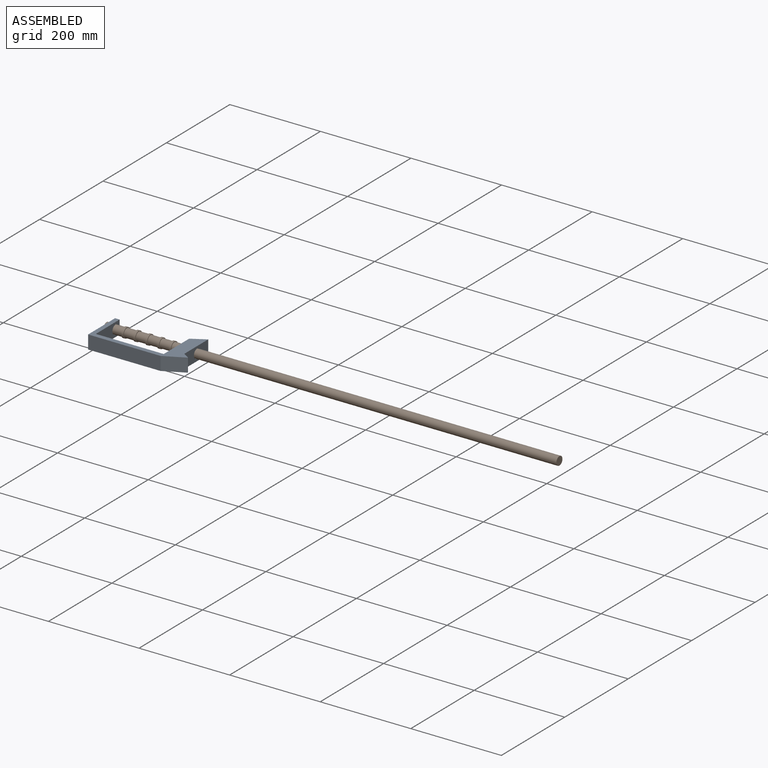
[diagram: assembled view]
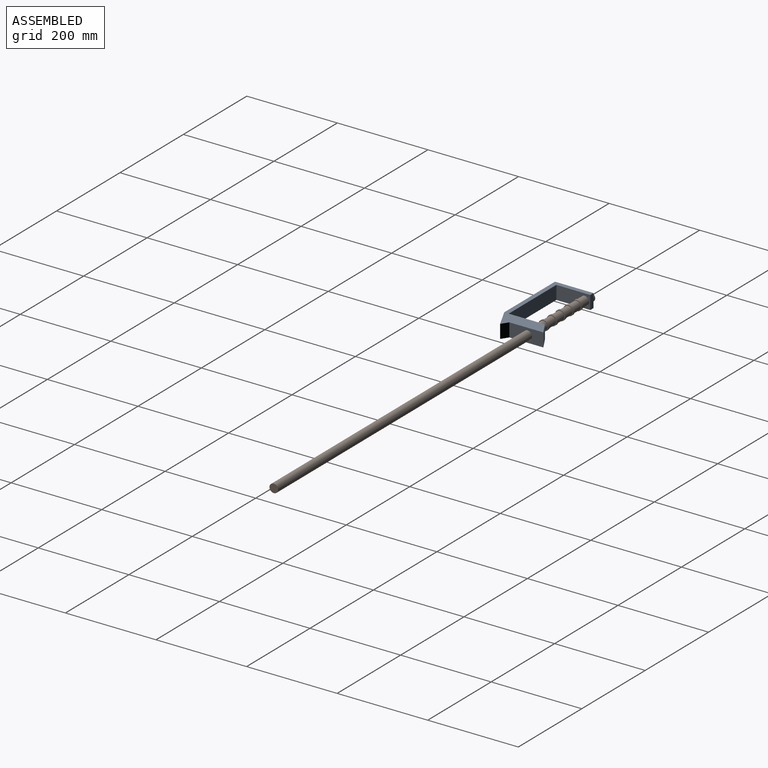
[diagram: assembled view, second angle]
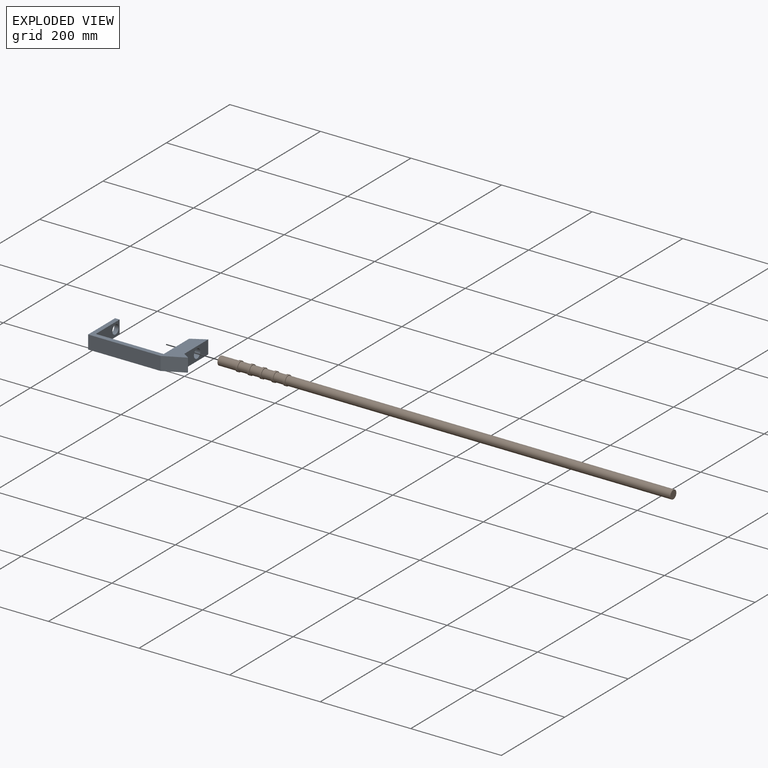
[diagram: exploded view]
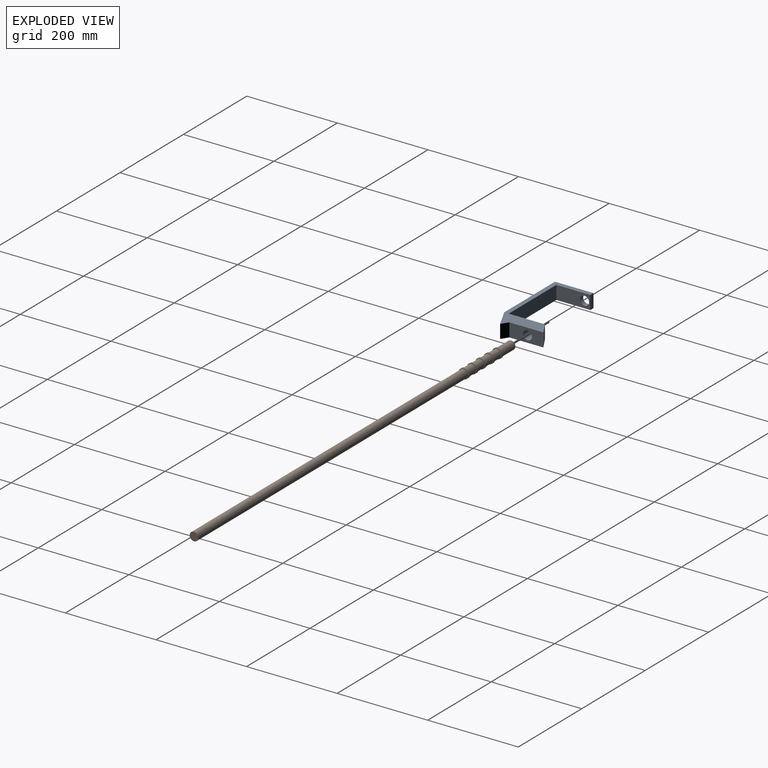
[diagram: exploded view, second angle]
FCSTD DOCUMENT  (FreeCAD 1.0R39319 (Git))
Label: chainsw
License: All rights reserved
LicenseURL: https://en.wikipedia.org/wiki/All_rights_reserved
objects: Sketcher::SketchObject×4, PartDesign::Pad×2, PartDesign::Body×2, Spreadsheet::Sheet×1, Assembly::JointGroup×1, PartDesign::Pocket×1, PartDesign::Revolution×1, PartDesign::LinearPattern×1, Assembly::AssemblyObject×1
note: 24 computed .brp shape members not serialized (recipe doc carries the construction recipe); baked Part::Feature solids carry a one-line shape summary decoded from their .brp

FEATURE [Spreadsheet::Sheet] Spreadsheet
  cells = A1='Feature; B1='Value; C1='Alias; A2='Total Length; B2(total_length)=1000; C2='total_length; A3='Handle Length; B3(handle_length)=150; C3='handle_length; A4='Handle Diameter; B4(handle_diameter)=35; C4='handle_diameter; A5='Crossguard Length; B5(crossguard_length)=120; C5='crossguard_length; A6='Crossguard Width; B6(crossguard_width)=25; C6='crossguard_width; A7='Crossguard Thickness; B7(crossguard_thickness)=12; C7='crossguard_thickness; A8='Blade Length; B8(blade_length)=650; C8='blade_length; A9='Blade Width; B9(blade_width)=90; C9='blade_width; A10='Blade Thickness; B10(blade_thickness)=25; C10='blade_thickness; A11='Guide Width; B11(guide_width)=12; C11='guide_width; A12='Guide Depth; B12(guide_depth)=6; C12='guide_depth; A13='Tooth Length; B13(tooth_length)=25; C13='tooth_length; A14='Tooth Height; B14(tooth_height)=20; C14='tooth_height; A15='Tooth Width; B15(tooth_width)=6; C15='tooth_width; A16='Tooth Spacing; B16(tooth_spacing)=45; C16='tooth_spacing; A17='Motor Housing Length; B17(motor_housing_length)=60; C17='motor_housing_length; A18='Motor Housing Width; B18(motor_housing_width)=40; C18='motor_housing_width; A19='Motor Housing Depth; B19(motor_housing_depth)=30; C19='motor_housing_depth; A20='Sprocket Diameter; B20(sprocket_diameter)=50; C20='sprocket_diameter; A21='Sprocket Thickness; B21(sprocket_thickness)=12; C21='sprocket_thickness; A22='Trigger Length; B22(trigger_length)=60; C22='trigger_length; A23='Trigger Travel; B23(trigger_travel)=8; C23='trigger_travel
FEATURE [Assembly::JointGroup] Joints
FEATURE [Sketcher::SketchObject] Sketch
  ArcFitTolerance = 1e-06
  AttachmentSupport = -> [XY_Plane001]
  FullyConstrained = true
  MakeInternals = false
  MapMode = 5
  sketch-geometry (10):
    g0: LineSegment StartX=0 StartY=75 StartZ=0 EndX=-30 EndY=57.6795 EndZ=0
    g1: LineSegment StartX=-30 StartY=57.6795 StartZ=0 EndX=-30 EndY=-22.3205 EndZ=0
    g2: LineSegment StartX=-30 StartY=-22.3205 StartZ=0 EndX=-180 EndY=-22.3205 EndZ=0
    g3: LineSegment StartX=-180 StartY=-22.3205 StartZ=0 EndX=-180 EndY=52.6795 EndZ=0
    g4: LineSegment StartX=-180 StartY=52.6795 StartZ=0 EndX=-190 EndY=52.6795 EndZ=0
    g5: LineSegment StartX=-190 StartY=52.6795 StartZ=0 EndX=-190 EndY=-32.3205 EndZ=0
    g6: LineSegment StartX=-190 StartY=-32.3205 StartZ=0 EndX=-30 EndY=-32.3205 EndZ=0
    g7: LineSegment StartX=-30 StartY=-32.3205 StartZ=0 EndX=15 EndY=-9.95574 EndZ=0
    g8: LineSegment StartX=15 StartY=-9.95574 StartZ=0 EndX=0 EndY=0 EndZ=0
    g9: LineSegment StartX=0 StartY=0 StartZ=0 EndX=0 EndY=75 EndZ=0
  constraints (30):
    c: PointOnObject(g0,g-2)
    c: Coincident(g0,g1)
    c: Vertical(g1)
    c: Coincident(g1,g2)
    c: Horizontal(g2)
    c: Coincident(g2,g3)
    c: Vertical(g3)
    c: Coincident(g3,g4)
    c: Horizontal(g4)
    c: Coincident(g4,g5)
    c: Vertical(g5)
    c: Coincident(g5,g6)
    c: Horizontal(g6)
    c: Coincident(g6,g7)
    c: Coincident(g7,g8)
    c: PointOnObject(g8,g-1)
    c: Coincident(g8,g9)
    c: Coincident(g9,g0)
    c: Vertical(g9)
    c: Angle(g0,g9) = 1.0472
    c: Angle(g8,g7) = 1.0472
    c: DistanceX(g-1,g7) = 15
    c: DistanceX(g2,g2) = 150
    c: DistanceX(g0,g0) = 30
    c: Distance(g4,g4) = 10
    c: DistanceY(g5,g2) = 10
    c: DistanceY(g9,g9) = 75
    c: DistanceY(g1,g1) = 80
    c: DistanceY(g5,g5) = 85
    c: DistanceX(g6,g6) = 160
FEATURE [PartDesign::Pad] Pad
  Direction = (0,0,1)
  Length = 30
  Length2 = 10
  Midplane = true
  Profile = -> Sketch
  ReferenceAxis = -> Sketch [N_Axis]
  Refine = true
  Suppressed = false
  Type = 0
FEATURE [Sketcher::SketchObject] Sketch001
  ArcFitTolerance = 1e-06
  AttachmentSupport = -> [Pad]
  FullyConstrained = true
  MakeInternals = false
  MapMode = 5
  Placement = pos=(-190,0,0) rot=(0.57735,-0.57735,-0.57735;2.0944rad)
  sketch-geometry (1):
    g0: Circle CenterX=-40 CenterY=0 CenterZ=0 NormalX=0 NormalY=0 NormalZ=1 AngleXU=0 Radius=10
  constraints (3):
    c: PointOnObject(g0,g-1)
    c: Diameter(g0) = 20
    c: Distance(g0,g-2) = 30
FEATURE [PartDesign::Pocket] Pocket
  BaseFeature = -> Pad
  Direction = (1,0,0)
  Length = 5
  Length2 = 5
  Profile = -> Sketch001
  ReferenceAxis = -> Sketch001 [N_Axis]
  Refine = true
  Suppressed = false
  Type = 1
FEATURE [PartDesign::Body] Body
  AllowCompound = false
  Group = -> [Sketch,Pad,Sketch001,Pocket]
  Origin = -> Origin001
  Tip = -> Pocket
FEATURE [Sketcher::SketchObject] Sketch002
  ArcFitTolerance = 1e-06
  AttachmentSupport = -> [YZ_Plane002]
  FullyConstrained = true
  MakeInternals = false
  MapMode = 5
  Placement = pos=(0,0,0) rot=(0.57735,0.57735,0.57735;2.0944rad)
  sketch-geometry (1):
    g0: Circle CenterX=40 CenterY=0 CenterZ=0 NormalX=0 NormalY=0 NormalZ=1 AngleXU=0 Radius=9.5
  constraints (3):
    c: PointOnObject(g0,g-1)
    c: Diameter(g0) = 19
    c: DistanceX(g-1,g0) = 40
FEATURE [PartDesign::Pad] Pad001
  Direction = (1,0,0)
  Length = 800
  Length2 = 200
  Placement = pos=(0,0,0) rot=(1,1,1;2.0944rad)
  Profile = -> Sketch002
  ReferenceAxis = -> Sketch002 [N_Axis]
  Refine = true
  Suppressed = false
  Type = 4
FEATURE [Sketcher::SketchObject] Sketch003
  ArcFitTolerance = 1e-06
  AttachmentSupport = -> [XY_Plane002]
  FullyConstrained = true
  MakeInternals = false
  MapMode = 5
  sketch-geometry (4):
    g0: LineSegment StartX=-55 StartY=49 StartZ=0 EndX=-50 EndY=49 EndZ=0
    g1: LineSegment StartX=-50 StartY=49 StartZ=0 EndX=-50 EndY=51 EndZ=0
    g2: LineSegment StartX=-50 StartY=51 StartZ=0 EndX=-55 EndY=51 EndZ=0
    g3: LineSegment StartX=-55 StartY=51 StartZ=0 EndX=-55 EndY=49 EndZ=0
  constraints (12):
    c: Coincident(g0,g1)
    c: Coincident(g1,g2)
    c: Coincident(g2,g3)
    c: Coincident(g3,g0)
    c: Horizontal(g0)
    c: Horizontal(g2)
    c: Vertical(g1)
    c: Vertical(g3)
    c: Distance(g1,g3) = 5
    c: Distance(g0,g2) = 2
    c: DistanceX(g0,g-1) = 50
    c: DistanceY(g-1,g0) = 49
FEATURE [PartDesign::Revolution] Revolution
  Angle = 360
  Angle2 = 60
  Axis = (1,0,3e-16)
  Base = (-200,40,-3.55e-14)
  BaseFeature = -> Pad001
  Placement = pos=(0,0,0) rot=(1,1,1;2.0944rad)
  Profile = -> Sketch003
  ReferenceAxis = -> Pad001 [Edge2]
  Refine = true
  Suppressed = false
  Type = 0
FEATURE [PartDesign::LinearPattern] LinearPattern
  BaseFeature = -> Revolution
  Direction = -> Sketch003 [H_Axis]
  Length = 105
  Mode = 0
  Occurrences = 5
  Offset = 26.25
  Originals = -> [Revolution]
  Placement = pos=(0,0,0) rot=(1,1,1;2.0944rad)
  Refine = true
  Reversed = true
  Suppressed = false
  TransformMode = 0
FEATURE [PartDesign::Body] Body001
  AllowCompound = false
  Group = -> [Sketch002,Pad001,Sketch003,Revolution,LinearPattern]
  Origin = -> Origin002
  Tip = -> LinearPattern
FEATURE [Assembly::AssemblyObject] Assembly
  Group = -> [Joints,Body,Body001]
  Origin = -> Origin
  Type = Assembly
